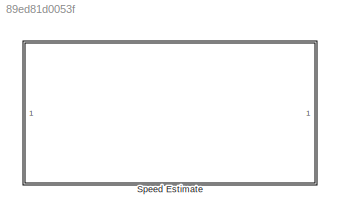
MODEL slx_89ed81d0053f
KIND library
CONFIG AbsTol = auto
CONFIG EnableMultiTasking = off
CONFIG FixedStep = auto
CONFIG MaxStep = auto
CONFIG MinStep = auto
CONFIG RelTol = 1e-3
CONFIG SampleTimeConstraint = Unconstrained
CONFIG SolverName = VariableStepAuto
CONFIG StartTime = 0.0
CONFIG StopTime = 10.0
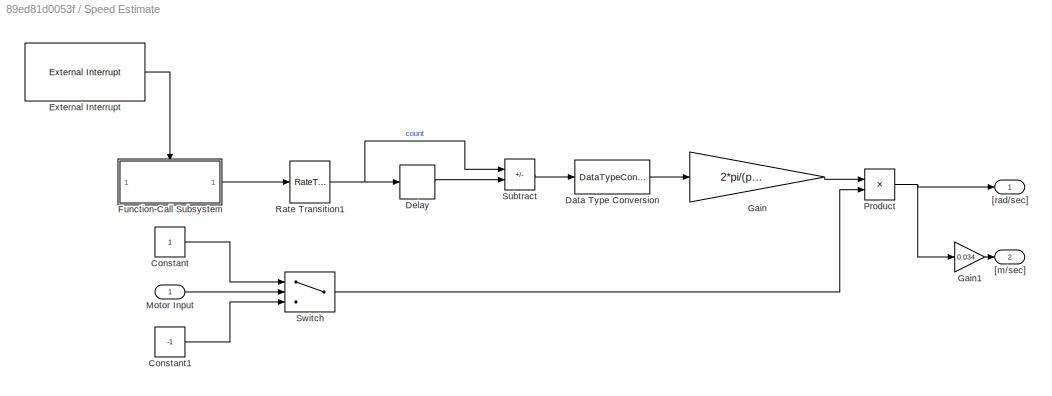
BLOCK [SubSystem] Speed Estimate
BLOCK [Constant] Speed Estimate/Constant
BLOCK [Constant] Speed Estimate/Constant1
  Value = -1
BLOCK [DataTypeConversion] Speed Estimate/Data Type Conversion
  OutDataTypeStr = single
  RndMeth = Floor
  SaturateOnIntegerOverflow = off
BLOCK [Delay] Speed Estimate/Delay
  DelayLength = 10
  InputPortMap = u0
BLOCK [Reference] Speed Estimate/External Interrupt  REF=arduinolib/External Interrupt
  SourceBlock = arduinolib/External Interrupt
  SourceType = Arduino Interrupt Block
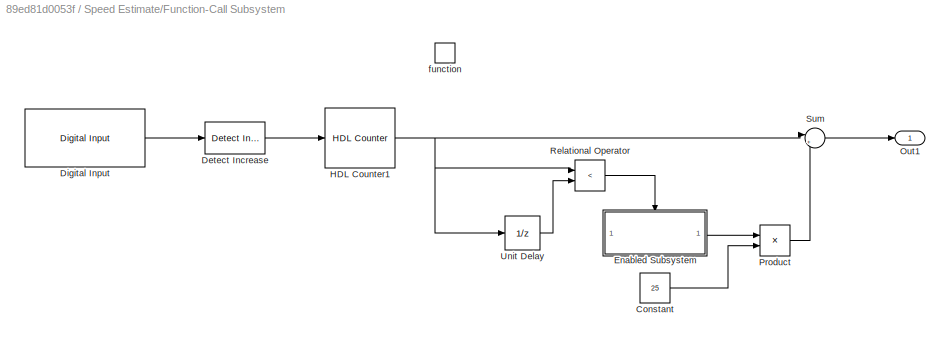
BLOCK [SubSystem] Speed Estimate/Function-Call Subsystem
  TreatAsAtomicUnit = on
BLOCK [Constant] Speed Estimate/Function-Call Subsystem/Constant
  Value = 25
BLOCK [Reference] Speed Estimate/Function-Call Subsystem/Detect Increase  REF=simulink/Logic and Bit
Operations/Detect
Increase
  SourceBlock = simulink/Logic and Bit\nOperations/Detect\nIncrease
  SourceType = Detect Increase
BLOCK [Reference] Speed Estimate/Function-Call Subsystem/Digital Input  REF=arduinolib/Digital Input
  SourceBlock = arduinolib/Digital Input
  SourceType = Arduino Digital Input
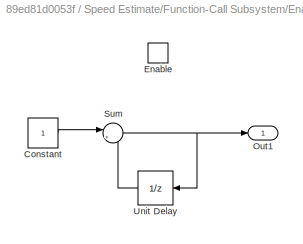
BLOCK [SubSystem] Speed Estimate/Function-Call Subsystem/Enabled Subsystem
  TreatAsAtomicUnit = on
BLOCK [Constant] Speed Estimate/Function-Call Subsystem/Enabled Subsystem/Constant
BLOCK [EnablePort] Speed Estimate/Function-Call Subsystem/Enabled Subsystem/Enable
BLOCK [Outport] Speed Estimate/Function-Call Subsystem/Enabled Subsystem/Out1
BLOCK [Sum] Speed Estimate/Function-Call Subsystem/Enabled Subsystem/Sum
  Inputs = |++
BLOCK [UnitDelay] Speed Estimate/Function-Call Subsystem/Enabled Subsystem/Unit Delay
  HasFrameUpgradeWarning = on
  SampleTime = -1
BLOCK [Reference] Speed Estimate/Function-Call Subsystem/HDL Counter1  REF=hdlsllib_double/Sources/HDL Counter
  SourceBlock = hdlsllib_double/Sources/HDL Counter
  SourceType = HDL Counter
BLOCK [Outport] Speed Estimate/Function-Call Subsystem/Out1
BLOCK [Product] Speed Estimate/Function-Call Subsystem/Product
BLOCK [RelationalOperator] Speed Estimate/Function-Call Subsystem/Relational Operator
  InputSameDT = off
  Operator = <
  OutDataTypeStr = boolean
  RndMeth = Simplest
BLOCK [Sum] Speed Estimate/Function-Call Subsystem/Sum
  Inputs = |++
BLOCK [UnitDelay] Speed Estimate/Function-Call Subsystem/Unit Delay
  HasFrameUpgradeWarning = on
  SampleTime = -1
BLOCK [TriggerPort] Speed Estimate/Function-Call Subsystem/function
  StatesWhenEnabling = held
  TriggerType = function-call
  VariantControl = (inherit)
BLOCK [Gain] Speed Estimate/Gain
  Gain = 2*pi/(pulse*10*Ts)
BLOCK [Gain] Speed Estimate/Gain1
  Gain = 0.034
BLOCK [Inport] Speed Estimate/Motor Input
BLOCK [Product] Speed Estimate/Product
BLOCK [RateTransition] Speed Estimate/Rate Transition1
  Deterministic = off
BLOCK [Sum] Speed Estimate/Subtract
  IconShape = rectangular
  Inputs = +-
BLOCK [Switch] Speed Estimate/Switch
  Criteria = u2 > Threshold
  InputSameDT = off
  SaturateOnIntegerOverflow = off
BLOCK [Outport] Speed Estimate/[m//sec]
  Port = 2
BLOCK [Outport] Speed Estimate/[rad//sec]
LINE Speed Estimate/Constant1:1 -> Speed Estimate/Switch:3
LINE Speed Estimate/Constant:1 -> Speed Estimate/Switch:1
LINE Speed Estimate/Data Type Conversion:1 -> Speed Estimate/Gain:1
LINE Speed Estimate/Delay:1 -> Speed Estimate/Subtract:2
LINE Speed Estimate/External Interrupt:1 -> Speed Estimate/Function-Call Subsystem:trigger
LINE Speed Estimate/Function-Call Subsystem/Constant:1 -> Speed Estimate/Function-Call Subsystem/Product:2
LINE Speed Estimate/Function-Call Subsystem/Detect Increase:1 -> Speed Estimate/Function-Call Subsystem/HDL Counter1:1
LINE Speed Estimate/Function-Call Subsystem/Digital Input:1 -> Speed Estimate/Function-Call Subsystem/Detect Increase:1
LINE Speed Estimate/Function-Call Subsystem/Enabled Subsystem/Constant:1 -> Speed Estimate/Function-Call Subsystem/Enabled Subsystem/Sum:1
NET Speed Estimate/Function-Call Subsystem/Enabled Subsystem/Sum:1 -> Speed Estimate/Function-Call Subsystem/Enabled Subsystem/Out1:1, Speed Estimate/Function-Call Subsystem/Enabled Subsystem/Unit Delay:1
LINE Speed Estimate/Function-Call Subsystem/Enabled Subsystem/Unit Delay:1 -> Speed Estimate/Function-Call Subsystem/Enabled Subsystem/Sum:2
LINE Speed Estimate/Function-Call Subsystem/Enabled Subsystem:1 -> Speed Estimate/Function-Call Subsystem/Product:1
NET Speed Estimate/Function-Call Subsystem/HDL Counter1:1 -> Speed Estimate/Function-Call Subsystem/Relational Operator:1, Speed Estimate/Function-Call Subsystem/Sum:1, Speed Estimate/Function-Call Subsystem/Unit Delay:1
LINE Speed Estimate/Function-Call Subsystem/Product:1 -> Speed Estimate/Function-Call Subsystem/Sum:2
LINE Speed Estimate/Function-Call Subsystem/Relational Operator:1 -> Speed Estimate/Function-Call Subsystem/Enabled Subsystem:enable
LINE Speed Estimate/Function-Call Subsystem/Sum:1 -> Speed Estimate/Function-Call Subsystem/Out1:1
LINE Speed Estimate/Function-Call Subsystem/Unit Delay:1 -> Speed Estimate/Function-Call Subsystem/Relational Operator:2
LINE Speed Estimate/Function-Call Subsystem:1 -> Speed Estimate/Rate Transition1:1
LINE Speed Estimate/Gain1:1 -> Speed Estimate/[m//sec]:1
LINE Speed Estimate/Gain:1 -> Speed Estimate/Product:1
LINE Speed Estimate/Motor Input:1 -> Speed Estimate/Switch:2
NET Speed Estimate/Product:1 -> Speed Estimate/Gain1:1, Speed Estimate/[rad//sec]:1
NET Speed Estimate/Rate Transition1:1 -> Speed Estimate/Delay:1, Speed Estimate/Subtract:1
LINE Speed Estimate/Subtract:1 -> Speed Estimate/Data Type Conversion:1
LINE Speed Estimate/Switch:1 -> Speed Estimate/Product:2
note: NET lines group one-source signal fan-out (src -> all destinations, sorted); 1:1 wires keep LINE
